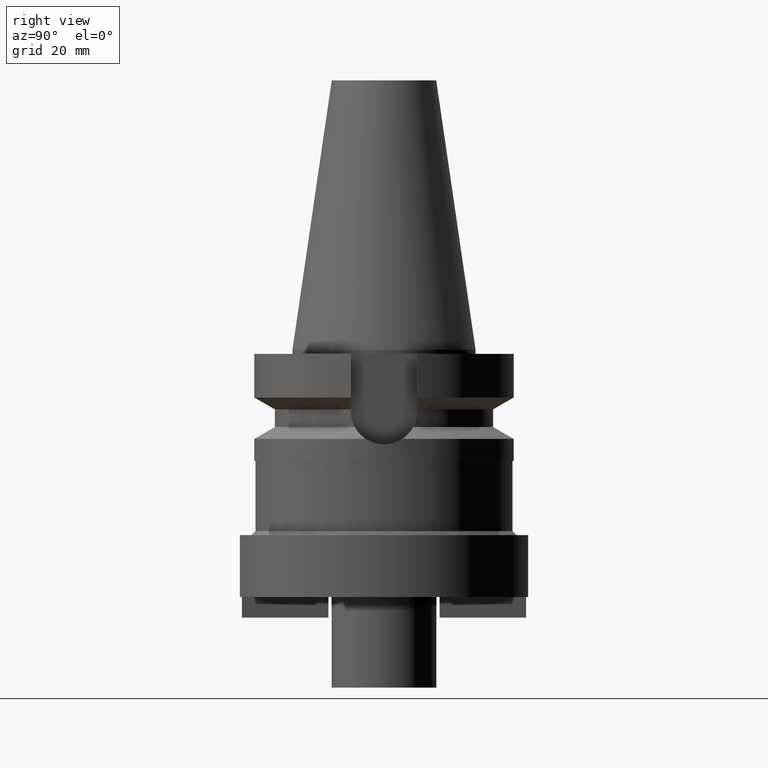
[diagram: clean part render]
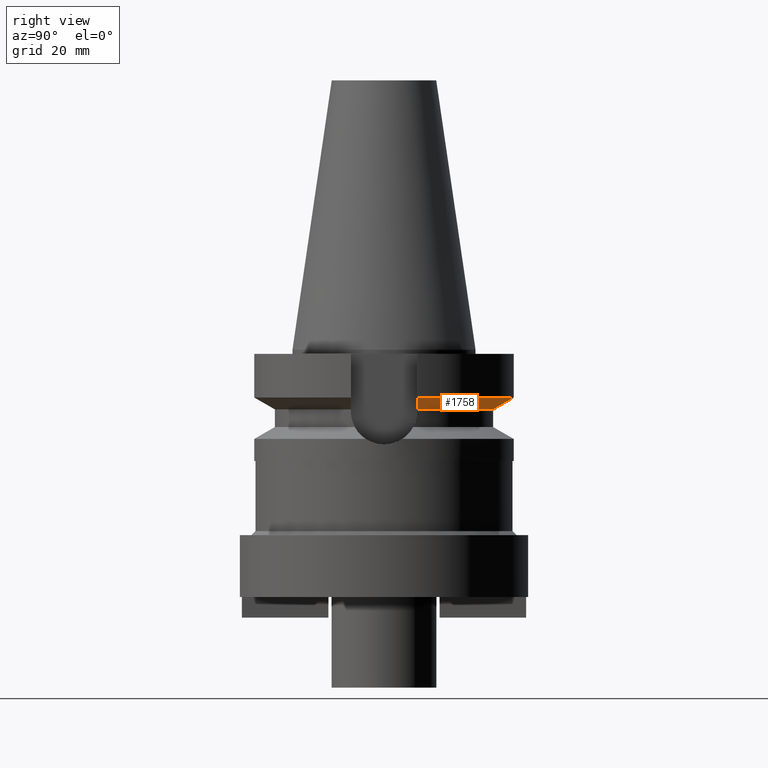
[diagram: same view with one face highlighted and labeled with its STEP entity id]
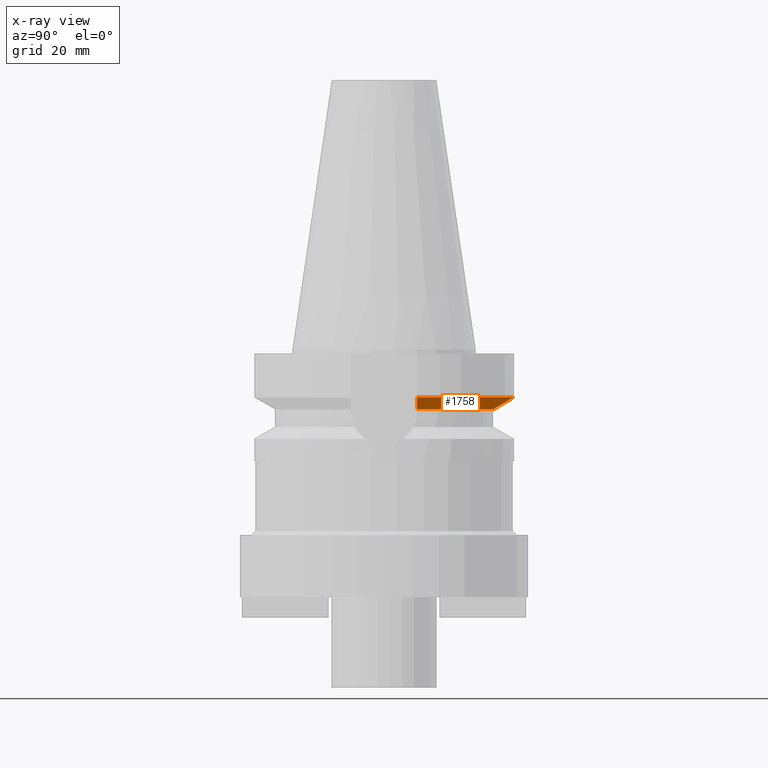
[diagram: x-ray of the same camera — body ghosted, the highlighted face saturated]
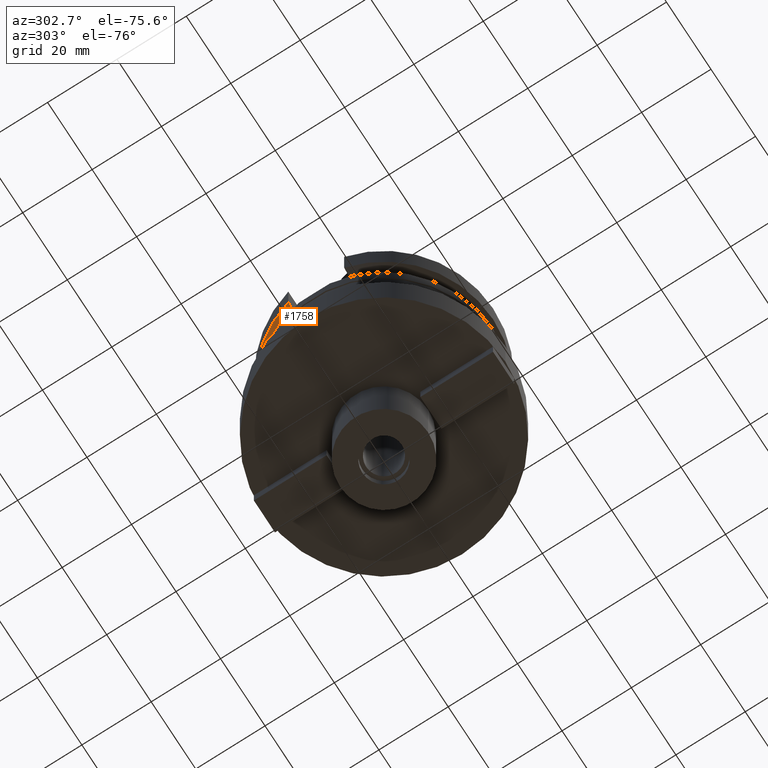
[diagram: same view with one face highlighted and labeled with its STEP entity id]
A machine part, right view. The second image highlights one B-rep face of the part: STEP entity #1758.
The next image is the same camera in x-ray: the body ghosted, the highlighted face saturated — about 0% of this face is hidden behind the body in this view.
A second angle (auxiliary view) of the same face is appended — the face is thin or edge-on in the first view.
In plain terms, the highlighted conical surface has half-angle 60 deg.
Its self-contained STEP definition (entity closure, byte-faithful):
#344=CARTESIAN_POINT('',(3.045402291392E1,8.049999276923E0,-1.156551216527E1));
#345=CARTESIAN_POINT('',(2.987645774881E1,8.049999276923E0,-1.188789691245E1));
#346=CARTESIAN_POINT('',(2.872091191661E1,8.049999725941E0,-1.253193836554E1));
#347=CARTESIAN_POINT('',(2.698538655620E1,8.050002043822E0,-1.349404325019E1));
#348=CARTESIAN_POINT('',(2.582730531408E1,8.049995413789E0,-1.413348341865E1));
#349=CARTESIAN_POINT('',(2.524772413185E1,8.049995413789E0,-1.445229204325E1));
#388=CARTESIAN_POINT('',(-2.524772216431E1,8.050001584711E0,-1.445224489002E1));
#389=CARTESIAN_POINT('',(-2.582727362441E1,8.050001584711E0,-1.413345268912E1));
#390=CARTESIAN_POINT('',(-2.698547389306E1,8.049999813148E0,-1.349419196304E1));
#391=CARTESIAN_POINT('',(-2.872100155720E1,8.049998276914E0,-1.253209169978E1));
#392=CARTESIAN_POINT('',(-2.987642830197E1,8.050004145102E0,-1.188786873999E1));
#393=CARTESIAN_POINT('',(-3.045402162710E1,8.050004145102E0,-1.156546831535E1));
#398=CARTESIAN_POINT('',(0.E0,1.065333950388E-14,-1.445225699861E1));
#399=DIRECTION('',(0.E0,0.E0,-1.E0));
#400=DIRECTION('',(-9.527442516822E-1,3.037735849057E-1,0.E0));
#401=AXIS2_PLACEMENT_3D('',#398,#399,#400);
#406=CARTESIAN_POINT('',(0.E0,1.065333950388E-14,-1.445225699861E1));
#407=DIRECTION('',(0.E0,0.E0,-1.E0));
#408=DIRECTION('',(0.E0,1.E0,0.E0));
#409=AXIS2_PLACEMENT_3D('',#406,#407,#408);
#414=CARTESIAN_POINT('',(0.E0,1.065333950388E-14,-1.156550565267E1));
#415=DIRECTION('',(0.E0,0.E0,1.E0));
#416=DIRECTION('',(9.667943721520E-1,2.555555555555E-1,0.E0));
#417=AXIS2_PLACEMENT_3D('',#414,#415,#416);
#422=CARTESIAN_POINT('',(0.E0,1.065333950388E-14,-1.156550565267E1));
#423=DIRECTION('',(0.E0,0.E0,1.E0));
#424=DIRECTION('',(0.E0,1.E0,0.E0));
#425=AXIS2_PLACEMENT_3D('',#422,#423,#424);
#1397=CARTESIAN_POINT('',(-2.524772216431E1,8.050001584711E0,
-1.445224489002E1));
#1398=VERTEX_POINT('',#1397);
#1399=CARTESIAN_POINT('',(2.524772413185E1,8.049995413789E0,-1.445229204325E1));
#1400=VERTEX_POINT('',#1399);
#1401=CARTESIAN_POINT('',(0.E0,2.65E1,-1.445225699861E1));
#1402=VERTEX_POINT('',#1401);
#1433=VERTEX_POINT('',#393);
#1438=VERTEX_POINT('',#344);
#1439=CARTESIAN_POINT('',(0.E0,3.15E1,-1.156550565267E1));
#1440=VERTEX_POINT('',#1439);
#1743=CARTESIAN_POINT('',(0.E0,1.065333950388E-14,-1.300888132564E1));
#1744=DIRECTION('',(0.E0,0.E0,1.E0));
#1745=DIRECTION('',(0.E0,1.E0,0.E0));
#1746=AXIS2_PLACEMENT_3D('',#1743,#1744,#1745);
#1747=CONICAL_SURFACE('',#1746,2.9E1,6.E1);
#1748=ORIENTED_EDGE('',*,*,#1732,.F.);
#1749=ORIENTED_EDGE('',*,*,#1721,.T.);
#1750=ORIENTED_EDGE('',*,*,#1719,.T.);
#1751=ORIENTED_EDGE('',*,*,#1698,.F.);
#1753=ORIENTED_EDGE('',*,*,#1752,.T.);
#1755=ORIENTED_EDGE('',*,*,#1754,.T.);
#1756=EDGE_LOOP('',(#1748,#1749,#1750,#1751,#1753,#1755));
#1757=FACE_OUTER_BOUND('',#1756,.F.);
#350=B_SPLINE_CURVE_WITH_KNOTS('',3,(#344,#345,#346,#347,#348,#349),
.UNSPECIFIED.,.F.,.F.,(4,1,1,4),(0.E0,3.333333333333E-1,6.666666666667E-1,1.E0),
.UNSPECIFIED.);
#394=B_SPLINE_CURVE_WITH_KNOTS('',3,(#388,#389,#390,#391,#392,#393),
.UNSPECIFIED.,.F.,.F.,(4,1,1,4),(0.E0,3.333333333333E-1,6.666666666667E-1,1.E0),
.UNSPECIFIED.);
#402=CIRCLE('',#401,2.65E1);
#410=CIRCLE('',#409,2.65E1);
#418=CIRCLE('',#417,3.15E1);
#426=CIRCLE('',#425,3.15E1);
#1698=EDGE_CURVE('',#1438,#1400,#350,.T.);
#1719=EDGE_CURVE('',#1402,#1400,#410,.T.);
#1721=EDGE_CURVE('',#1398,#1402,#402,.T.);
#1732=EDGE_CURVE('',#1398,#1433,#394,.T.);
#1752=EDGE_CURVE('',#1438,#1440,#418,.T.);
#1754=EDGE_CURVE('',#1440,#1433,#426,.T.);
#1758=ADVANCED_FACE('',(#1757),#1747,.T.);